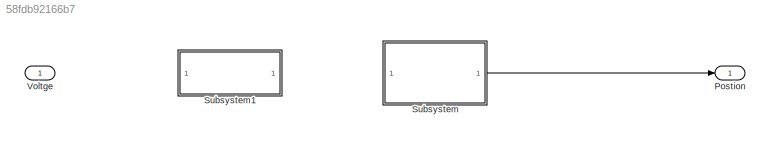
MODEL slx_58fdb92166b7
KIND model
CONFIG AbsTol = auto
CONFIG EnableMultiTasking = off
CONFIG FixedStep = auto
CONFIG MaxStep = auto
CONFIG MinStep = auto
CONFIG RelTol = 1e-3
CONFIG SampleTimeConstraint = Unconstrained
CONFIG SolverName = VariableStepAuto
CONFIG StartTime = 0.0
CONFIG StopTime = 10.0
BLOCK [Outport] Postion
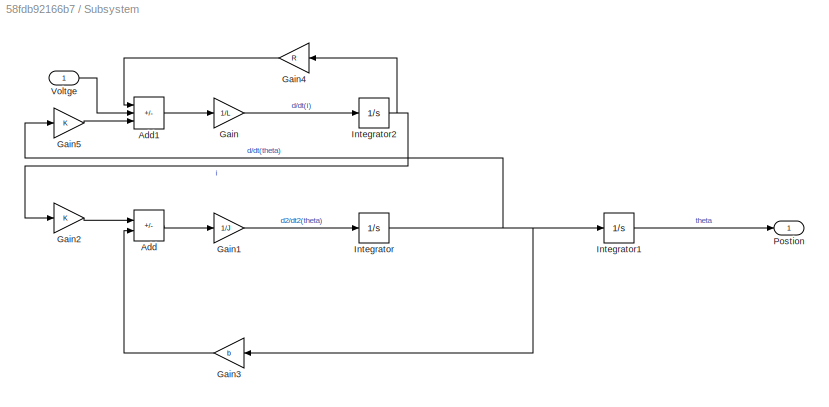
BLOCK [SubSystem] Subsystem
  Ports = [1, 1]
  RequestExecContextInheritance = off
BLOCK [Sum] Subsystem/Add
  IconShape = rectangular
  Inputs = +-
  Ports = [2, 1]
BLOCK [Sum] Subsystem/Add1
  IconShape = rectangular
  Inputs = -+-
  Ports = [3, 1]
BLOCK [Gain] Subsystem/Gain
  Gain = 1/L
BLOCK [Gain] Subsystem/Gain1
  Gain = 1/J
BLOCK [Gain] Subsystem/Gain2
  Gain = K
BLOCK [Gain] Subsystem/Gain3
  Gain = b
  NameLocation = top
BLOCK [Gain] Subsystem/Gain4
  Gain = R
  NameLocation = top
BLOCK [Gain] Subsystem/Gain5
  Gain = K
BLOCK [Integrator] Subsystem/Integrator
  Ports = [1, 1]
BLOCK [Integrator] Subsystem/Integrator1
  Ports = [1, 1]
BLOCK [Integrator] Subsystem/Integrator2
  Ports = [1, 1]
BLOCK [Outport] Subsystem/Postion
BLOCK [Inport] Subsystem/Voltge
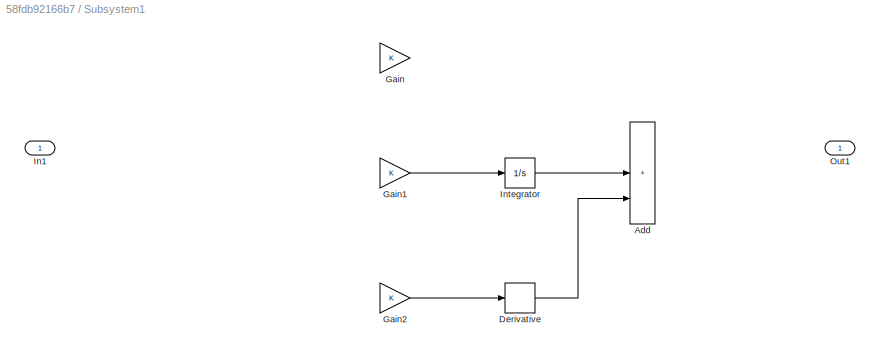
BLOCK [SubSystem] Subsystem1
  Ports = [1, 1]
  RequestExecContextInheritance = off
BLOCK [Sum] Subsystem1/Add
  IconShape = rectangular
  Inputs = +++
  Ports = [3, 1]
BLOCK [Derivative] Subsystem1/Derivative
BLOCK [Gain] Subsystem1/Gain
BLOCK [Gain] Subsystem1/Gain1
BLOCK [Gain] Subsystem1/Gain2
BLOCK [Inport] Subsystem1/In1
BLOCK [Integrator] Subsystem1/Integrator
  Ports = [1, 1]
BLOCK [Outport] Subsystem1/Out1
BLOCK [Inport] Voltge
LINE Subsystem/Add1:1 -> Subsystem/Gain:1
LINE Subsystem/Add:1 -> Subsystem/Gain1:1
LINE Subsystem/Gain1:1 -> Subsystem/Integrator:1
LINE Subsystem/Gain2:1 -> Subsystem/Add:1
LINE Subsystem/Gain3:1 -> Subsystem/Add:2
LINE Subsystem/Gain4:1 -> Subsystem/Add1:1
LINE Subsystem/Gain5:1 -> Subsystem/Add1:3
LINE Subsystem/Gain:1 -> Subsystem/Integrator2:1
LINE Subsystem/Integrator1:1 -> Subsystem/Postion:1
NET Subsystem/Integrator2:1 -> Subsystem/Gain2:1, Subsystem/Gain4:1
NET Subsystem/Integrator:1 -> Subsystem/Gain3:1, Subsystem/Gain5:1, Subsystem/Integrator1:1
LINE Subsystem/Voltge:1 -> Subsystem/Add1:2
LINE Subsystem1/Derivative:1 -> Subsystem1/Add:3
LINE Subsystem1/Gain1:1 -> Subsystem1/Integrator:1
LINE Subsystem1/Gain2:1 -> Subsystem1/Derivative:1
LINE Subsystem1/Integrator:1 -> Subsystem1/Add:2
LINE Subsystem:1 -> Postion:1
note: NET lines group one-source signal fan-out (src -> all destinations, sorted); 1:1 wires keep LINE
